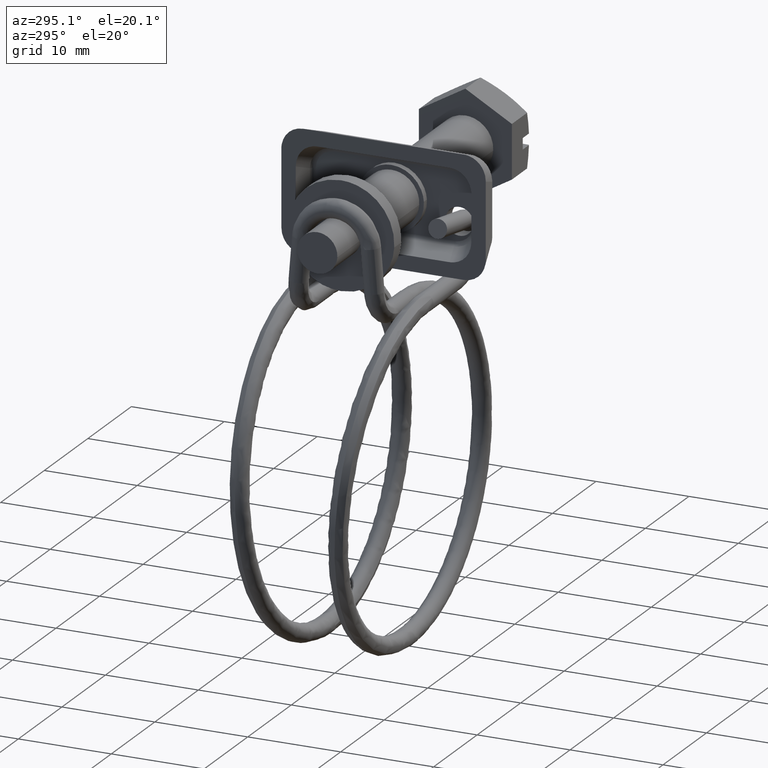
[diagram: clean part render]
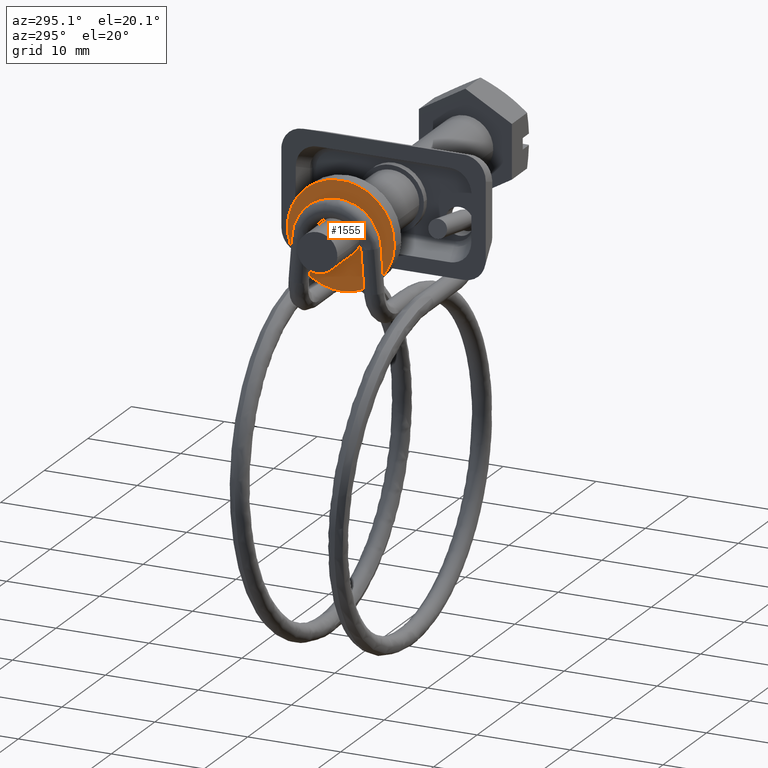
[diagram: same view with one face highlighted and labeled with its STEP entity id]
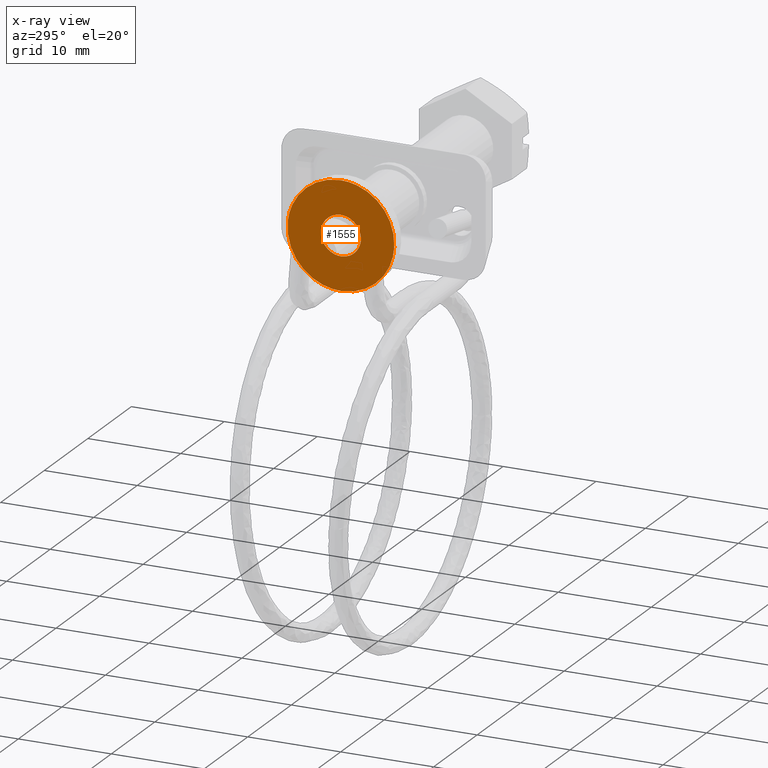
[diagram: x-ray of the same camera — body ghosted, the highlighted face saturated]
A machine part, auxiliary view. The second image highlights one B-rep face of the part: STEP entity #1555.
The next image is the same camera in x-ray: the body ghosted, the highlighted face saturated — about 0% of this face is hidden behind the body in this view.
In plain terms, the highlighted face is a freeform B-spline surface patch.
Its self-contained STEP definition (entity closure, byte-faithful):
#66=CARTESIAN_POINT('',(-28.600000000000001,5.709804776588035,0.678696849301988));
#67=VERTEX_POINT('',#66);
#68=CARTESIAN_POINT('',(-28.600000000000001,0.0,-5.750000000000000));
#69=VERTEX_POINT('',#68);
#70=CARTESIAN_POINT('',(-28.600000000000001,5.709804776588035,0.678696849301988));
#71=CARTESIAN_POINT('',(-28.600000000000009,5.750000000000000,0.340538688024381));
#72=CARTESIAN_POINT('',(-28.600000000000001,5.750000000000000,0.0));
#73=CARTESIAN_POINT('',(-28.600000000000012,5.750000000000000,-5.750000000000000));
#74=CARTESIAN_POINT('',(-28.600000000000001,0.0,-5.750000000000000));
#82=(BOUNDED_CURVE()B_SPLINE_CURVE(2,(#70,#71,#72,#73,#74),.UNSPECIFIED.,.F.,.U.)B_SPLINE_CURVE_WITH_KNOTS((3,2,3),(0.229562473514127,0.250000000000000,0.500000000000000),.UNSPECIFIED.)CURVE()GEOMETRIC_REPRESENTATION_ITEM()RATIONAL_B_SPLINE_CURVE((0.956026754184912,0.976055948331870,1.0,0.707106781186548,1.0))REPRESENTATION_ITEM(''));
#83=EDGE_CURVE('',#67,#69,#82,.T.);
#124=CARTESIAN_POINT('',(-28.600000000000001,-5.739275090922737,-0.351029102374424));
#125=VERTEX_POINT('',#124);
#131=CARTESIAN_POINT('',(-28.600000000000001,0.0,-5.750000000000000));
#132=CARTESIAN_POINT('',(-28.600000000000009,-5.409059884615235,-5.750000000000000));
#133=CARTESIAN_POINT('',(-28.599999999999998,-5.739275090922737,-0.351029102374424));
#141=(BOUNDED_CURVE()B_SPLINE_CURVE(2,(#131,#132,#133),.UNSPECIFIED.,.F.,.U.)B_SPLINE_CURVE_WITH_KNOTS((3,3),(0.500000000000000,0.739332962239023),.UNSPECIFIED.)CURVE()GEOMETRIC_REPRESENTATION_ITEM()RATIONAL_B_SPLINE_CURVE((1.0,0.719603993286617,0.976072041666889))REPRESENTATION_ITEM(''));
#142=EDGE_CURVE('',#69,#125,#141,.T.);
#165=CARTESIAN_POINT('',(-28.600000000000001,0.0,5.750000000000000));
#166=VERTEX_POINT('',#165);
#167=CARTESIAN_POINT('',(-28.600000000000001,0.0,5.750000000000000));
#168=CARTESIAN_POINT('',(-28.600000000000001,5.107003524174197,5.749999999999999));
#169=CARTESIAN_POINT('',(-28.600000000000001,5.709804776588035,0.678696849301988));
#177=(BOUNDED_CURVE()B_SPLINE_CURVE(2,(#167,#168,#169),.UNSPECIFIED.,.F.,.U.)B_SPLINE_CURVE_WITH_KNOTS((3,3),(0.0,0.229562473514127),.UNSPECIFIED.)CURVE()GEOMETRIC_REPRESENTATION_ITEM()RATIONAL_B_SPLINE_CURVE((1.0,0.731050832854678,0.956026754184912))REPRESENTATION_ITEM(''));
#178=EDGE_CURVE('',#166,#67,#177,.T.);
#180=CARTESIAN_POINT('',(-28.600000000000001,-5.739275090922737,-0.351029102374424));
#181=CARTESIAN_POINT('',(-28.600000000000001,-5.750000000000001,-0.175678389016020));
#182=CARTESIAN_POINT('',(-28.600000000000001,-5.750000000000000,0.0));
#183=CARTESIAN_POINT('',(-28.600000000000012,-5.750000000000000,5.750000000000000));
#184=CARTESIAN_POINT('',(-28.600000000000001,0.0,5.750000000000000));
#192=(BOUNDED_CURVE()B_SPLINE_CURVE(2,(#180,#181,#182,#183,#184),.UNSPECIFIED.,.F.,.U.)B_SPLINE_CURVE_WITH_KNOTS((3,2,3),(0.739332962239022,0.750000000000000,1.0),.UNSPECIFIED.)CURVE()GEOMETRIC_REPRESENTATION_ITEM()RATIONAL_B_SPLINE_CURVE((0.976072041666888,0.987502787899930,1.0,0.707106781186548,1.0))REPRESENTATION_ITEM(''));
#193=EDGE_CURVE('',#125,#166,#192,.T.);
#252=CARTESIAN_POINT('',(-28.600000000000001,2.134970481668269,0.253773604626564));
#253=VERTEX_POINT('',#252);
#254=CARTESIAN_POINT('',(-28.600000000000001,0.0,-2.150000000000000));
#255=VERTEX_POINT('',#254);
#256=CARTESIAN_POINT('',(-28.599999999999998,2.134970481668268,0.253773604626564));
#257=CARTESIAN_POINT('',(-28.600000000000005,2.150000000000000,0.127331857367350));
#258=CARTESIAN_POINT('',(-28.600000000000001,2.150000000000000,0.0));
#259=CARTESIAN_POINT('',(-28.600000000000001,2.150000000000000,-2.150000000000000));
#260=CARTESIAN_POINT('',(-28.600000000000001,0.0,-2.150000000000000));
#268=(BOUNDED_CURVE()B_SPLINE_CURVE(2,(#256,#257,#258,#259,#260),.UNSPECIFIED.,.F.,.U.)B_SPLINE_CURVE_WITH_KNOTS((3,2,3),(0.229562473497511,0.250000000000000,0.500000000000000),.UNSPECIFIED.)CURVE()GEOMETRIC_REPRESENTATION_ITEM()RATIONAL_B_SPLINE_CURVE((0.956026754152345,0.976055948312404,1.0,0.707106781186547,1.0))REPRESENTATION_ITEM(''));
#269=EDGE_CURVE('',#253,#255,#268,.T.);
#271=CARTESIAN_POINT('',(-28.600000000000001,-2.145989816598529,-0.131254360138669));
#272=VERTEX_POINT('',#271);
#273=CARTESIAN_POINT('',(-28.600000000000001,0.0,-2.150000000000000));
#274=CARTESIAN_POINT('',(-28.600000000000009,-2.022518043585273,-2.150000000000000));
#275=CARTESIAN_POINT('',(-28.600000000000001,-2.145989816598529,-0.131254360138669));
#283=(BOUNDED_CURVE()B_SPLINE_CURVE(2,(#273,#274,#275),.UNSPECIFIED.,.F.,.U.)B_SPLINE_CURVE_WITH_KNOTS((3,3),(0.500000000000000,0.739332962219660),.UNSPECIFIED.)CURVE()GEOMETRIC_REPRESENTATION_ITEM()RATIONAL_B_SPLINE_CURVE((1.0,0.719603993309301,0.976072041625392))REPRESENTATION_ITEM(''));
#284=EDGE_CURVE('',#255,#272,#283,.T.);
#351=CARTESIAN_POINT('',(-28.600000000000001,0.0,2.150000000000000));
#352=VERTEX_POINT('',#351);
#353=CARTESIAN_POINT('',(-28.600000000000001,0.0,2.150000000000000));
#354=CARTESIAN_POINT('',(-28.600000000000009,1.909575230589115,2.150000000000000));
#355=CARTESIAN_POINT('',(-28.599999999999998,2.134970481668268,0.253773604626564));
#363=(BOUNDED_CURVE()B_SPLINE_CURVE(2,(#353,#354,#355),.UNSPECIFIED.,.F.,.U.)B_SPLINE_CURVE_WITH_KNOTS((3,3),(0.0,0.229562473497512),.UNSPECIFIED.)CURVE()GEOMETRIC_REPRESENTATION_ITEM()RATIONAL_B_SPLINE_CURVE((1.0,0.731050832874144,0.956026754152345))REPRESENTATION_ITEM(''));
#364=EDGE_CURVE('',#352,#253,#363,.T.);
#398=CARTESIAN_POINT('',(-28.600000000000001,-2.145989816598529,-0.131254360138669));
#399=CARTESIAN_POINT('',(-28.599999999999998,-2.150000000000000,-0.065688441231082));
#400=CARTESIAN_POINT('',(-28.600000000000001,-2.150000000000000,0.0));
#401=CARTESIAN_POINT('',(-28.600000000000001,-2.150000000000000,2.150000000000000));
#402=CARTESIAN_POINT('',(-28.600000000000001,0.0,2.150000000000000));
#410=(BOUNDED_CURVE()B_SPLINE_CURVE(2,(#398,#399,#400,#401,#402),.UNSPECIFIED.,.F.,.U.)B_SPLINE_CURVE_WITH_KNOTS((3,2,3),(0.739332962219660,0.750000000000000,1.0),.UNSPECIFIED.)CURVE()GEOMETRIC_REPRESENTATION_ITEM()RATIONAL_B_SPLINE_CURVE((0.976072041625391,0.987502787877246,1.0,0.707106781186547,1.0))REPRESENTATION_ITEM(''));
#411=EDGE_CURVE('',#272,#352,#410,.T.);
#1538=CARTESIAN_POINT('',(-28.600000000000001,-6.324285135775414,-6.324424977710769));
#1539=CARTESIAN_POINT('',(-28.600000000000001,-6.324285135775414,6.324425286164805));
#1540=CARTESIAN_POINT('',(-28.600000000000001,6.324320402353612,-6.324424977710769));
#1541=CARTESIAN_POINT('',(-28.600000000000001,6.324320402353612,6.324425286164805));
#1542=B_SPLINE_SURFACE_WITH_KNOTS('',1,1,((#1538,#1540),(#1539,#1541)),.UNSPECIFIED.,.F.,.F.,.U.,(2,2),(2,2),(0.0,12.648850263875570),(0.0,12.648605538129029),.UNSPECIFIED.);
#1543=ORIENTED_EDGE('',*,*,#178,.T.);
#1544=ORIENTED_EDGE('',*,*,#83,.T.);
#1545=ORIENTED_EDGE('',*,*,#142,.T.);
#1546=ORIENTED_EDGE('',*,*,#193,.T.);
#1547=EDGE_LOOP('',(#1543,#1544,#1545,#1546));
#1548=FACE_OUTER_BOUND('',#1547,.T.);
#1549=ORIENTED_EDGE('',*,*,#284,.F.);
#1550=ORIENTED_EDGE('',*,*,#269,.F.);
#1551=ORIENTED_EDGE('',*,*,#364,.F.);
#1552=ORIENTED_EDGE('',*,*,#411,.F.);
#1553=EDGE_LOOP('',(#1549,#1550,#1551,#1552));
#1554=FACE_BOUND('',#1553,.T.);
#1555=ADVANCED_FACE('',(#1548,#1554),#1542,.T.);